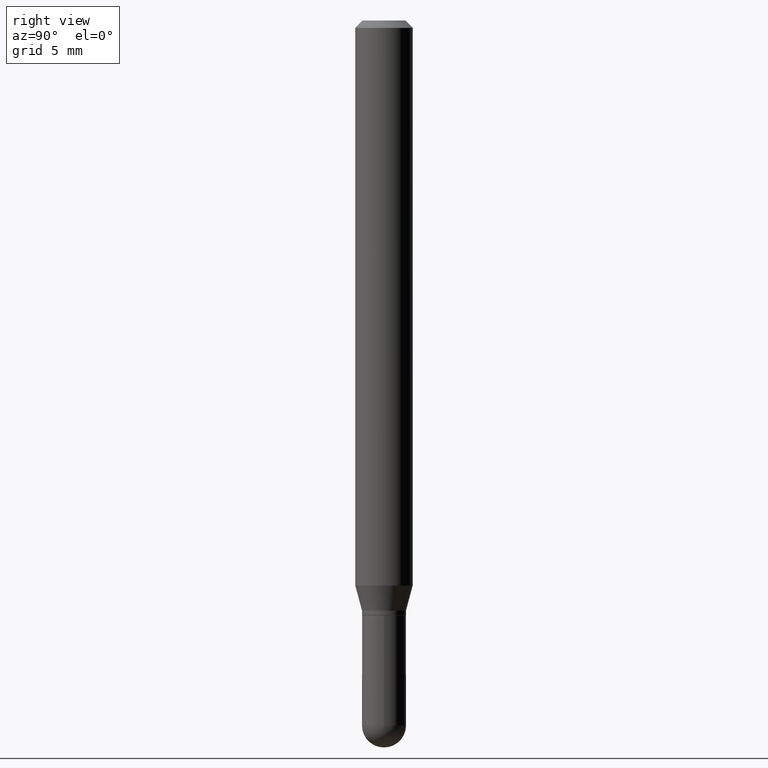
[diagram: clean part render]
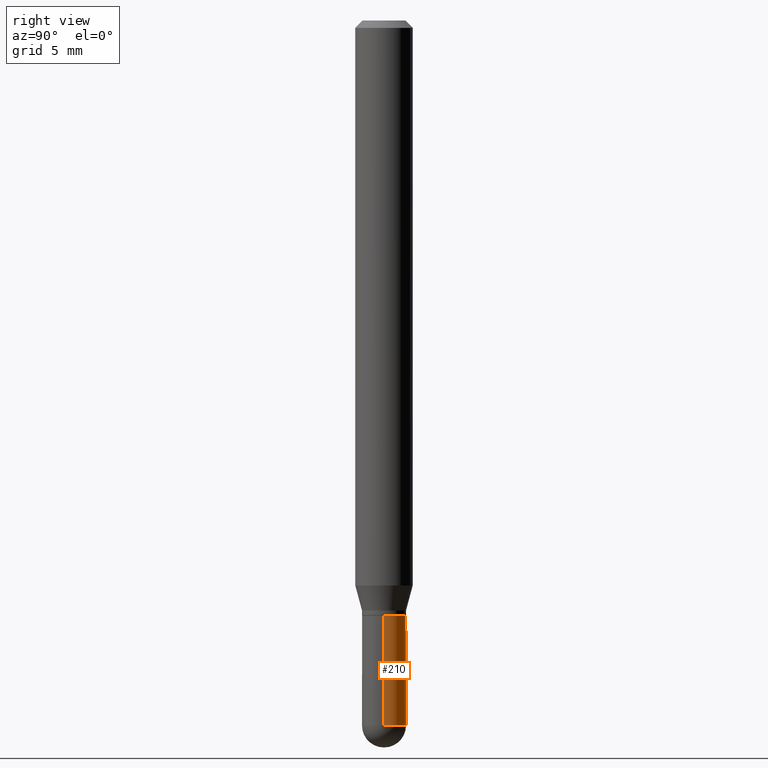
[diagram: same view with one face highlighted and labeled with its STEP entity id]
A machine part, right view. The second image highlights one B-rep face of the part: STEP entity #210.
In plain terms, the highlighted cylindrical surface (edge-blend (fillet) strip) has radius 1.1506 mm, axis along (-0, 0, 1).
Its self-contained STEP definition (entity closure, byte-faithful):
#9 = DIRECTION ( 'NONE',  ( 1.000000000000000000, -6.982962677686269866E-15, 0.000000000000000000 ) ) ;
#75 = CIRCLE ( 'NONE', #287, 0.04529999999999999999 ) ;
#77 = ORIENTED_EDGE ( 'NONE', *, *, #312, .F. ) ;
#80 = CYLINDRICAL_SURFACE ( 'NONE', #206, 0.04530000000000000693 ) ;
#85 = DIRECTION ( 'NONE',  ( 1.000000000000000000, -6.982962677686271444E-15, 0.000000000000000000 ) ) ;
#93 = ORIENTED_EDGE ( 'NONE', *, *, #263, .T. ) ;
#101 = CIRCLE ( 'NONE', #296, 0.04530000000000000693 ) ;
#108 = DIRECTION ( 'NONE',  ( -2.445468806185136597E-29, 3.491481338843145583E-15, 1.000000000000000000 ) ) ;
#121 = CARTESIAN_POINT ( 'NONE',  ( 0.04530000000000000693, -3.163282092991879344E-16, 2.208908079435559539E-30 ) ) ;
#129 = VECTOR ( 'NONE', #463, 39.37007874015748143 ) ;
#132 = CARTESIAN_POINT ( 'NONE',  ( 3.547886144013395202E-29, -5.065441126393634337E-15, -1.450799999999999645 ) ) ;
#144 = CARTESIAN_POINT ( 'NONE',  ( 0.000000000000000000, 0.000000000000000000, 0.000000000000000000 ) ) ;
#147 = VECTOR ( 'NONE', #481, 39.37007874015748143 ) ;
#163 = VERTEX_POINT ( 'NONE', #294 ) ;
#196 = AXIS2_PLACEMENT_3D ( 'NONE', #132, #370, #9 ) ;
#205 = LINE ( 'NONE', #121, #147 ) ;
#206 = AXIS2_PLACEMENT_3D ( 'NONE', #144, #108, #391 ) ;
#210 = ADVANCED_FACE ( 'NONE', ( #394 ), #80, .T. ) ;
#232 = VERTEX_POINT ( 'NONE', #366 ) ;
#240 = ORIENTED_EDGE ( 'NONE', *, *, #384, .F. ) ;
#241 = CIRCLE ( 'NONE', #196, 0.04530000000000000693 ) ;
#253 = EDGE_CURVE ( 'NONE', #232, #475, #101, .T. ) ;
#263 = EDGE_CURVE ( 'NONE', #163, #320, #437, .T. ) ;
#279 = CARTESIAN_POINT ( 'NONE',  ( 0.04529999999999999999, -4.591297960578735035E-15, -1.224399999999999933 ) ) ;
#287 = AXIS2_PLACEMENT_3D ( 'NONE', #311, #362, #85 ) ;
#294 = CARTESIAN_POINT ( 'NONE',  ( -0.04530000000000000693, -4.348329579537264718E-15, -1.450799999999999645 ) ) ;
#296 = AXIS2_PLACEMENT_3D ( 'NONE', #356, #512, #353 ) ;
#297 = CARTESIAN_POINT ( 'NONE',  ( 3.218758592993607350E-16, 0.04529999999999492072, -1.450800000000000090 ) ) ;
#311 = CARTESIAN_POINT ( 'NONE',  ( 2.994232006293080857E-29, -4.274969751279546755E-15, -1.224399999999999933 ) ) ;
#312 = EDGE_CURVE ( 'NONE', #412, #320, #75, .T. ) ;
#320 = VERTEX_POINT ( 'NONE', #398 ) ;
#347 = EDGE_CURVE ( 'NONE', #475, #163, #241, .T. ) ;
#353 = DIRECTION ( 'NONE',  ( 1.000000000000000000, -6.982962677686269866E-15, 0.000000000000000000 ) ) ;
#354 = ORIENTED_EDGE ( 'NONE', *, *, #253, .T. ) ;
#356 = CARTESIAN_POINT ( 'NONE',  ( 3.547886144013395202E-29, -5.065441126393634337E-15, -1.450799999999999645 ) ) ;
#362 = DIRECTION ( 'NONE',  ( -2.445468806185136597E-29, 3.491481338843145583E-15, 1.000000000000000000 ) ) ;
#366 = CARTESIAN_POINT ( 'NONE',  ( 0.04530000000000000693, -4.986533648135779220E-15, -1.450799999999999645 ) ) ;
#369 = EDGE_LOOP ( 'NONE', ( #401, #93, #77, #240, #354 ) ) ;
#370 = DIRECTION ( 'NONE',  ( -2.445468806185136597E-29, 3.491481338843145583E-15, 1.000000000000000000 ) ) ;
#384 = EDGE_CURVE ( 'NONE', #232, #412, #205, .T. ) ;
#391 = DIRECTION ( 'NONE',  ( 1.000000000000000000, -6.982962677686266711E-15, 4.876176775795936353E-29 ) ) ;
#394 = FACE_OUTER_BOUND ( 'NONE', #369, .T. ) ;
#398 = CARTESIAN_POINT ( 'NONE',  ( -0.04529999999999999999, -4.348329579537264718E-15, -1.224399999999999933 ) ) ;
#401 = ORIENTED_EDGE ( 'NONE', *, *, #347, .T. ) ;
#412 = VERTEX_POINT ( 'NONE', #279 ) ;
#437 = LINE ( 'NONE', #504, #129 ) ;
#463 = DIRECTION ( 'NONE',  ( -2.445468806185136877E-29, 3.491481338843145188E-15, 1.000000000000000000 ) ) ;
#475 = VERTEX_POINT ( 'NONE', #297 ) ;
#481 = DIRECTION ( 'NONE',  ( -2.445468806185136877E-29, 3.491481338843145188E-15, 1.000000000000000000 ) ) ;
#504 = CARTESIAN_POINT ( 'NONE',  ( -0.04530000000000000693, 3.218758592993254334E-16, -2.228277595885472564E-30 ) ) ;
#512 = DIRECTION ( 'NONE',  ( -2.445468806185136597E-29, 3.491481338843145583E-15, 1.000000000000000000 ) ) ;